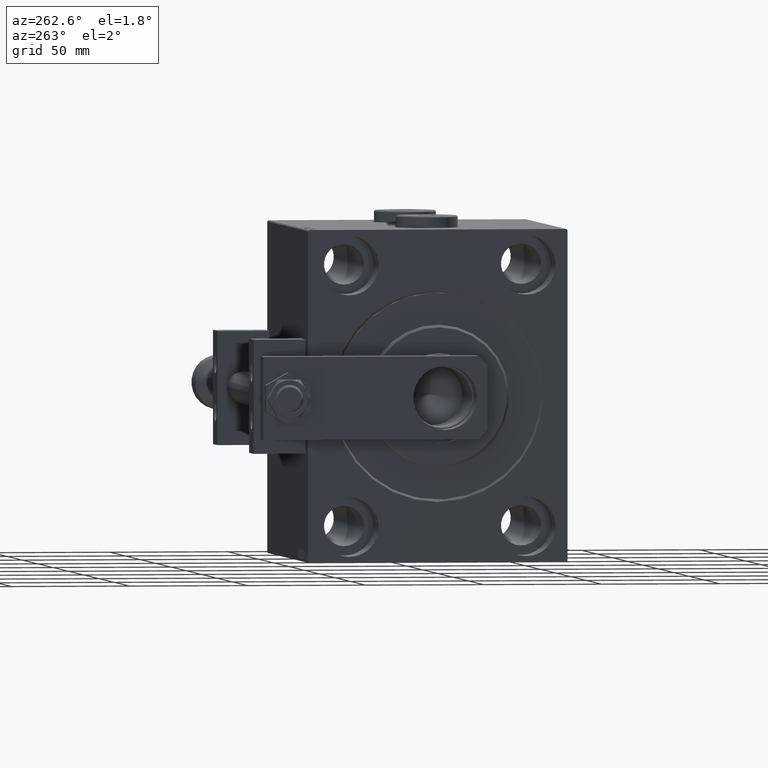
[diagram: clean part render]
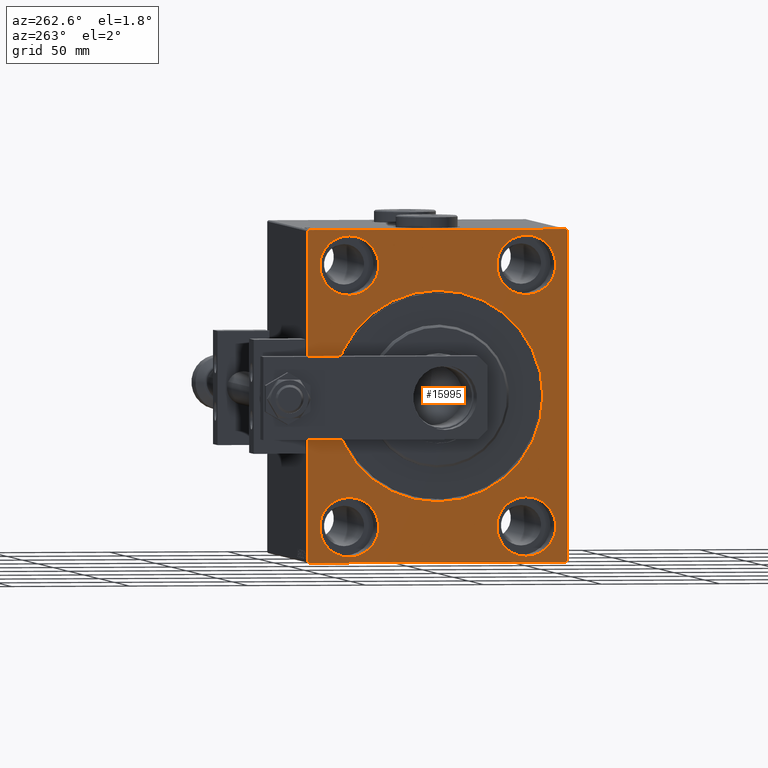
[diagram: same view with one face highlighted and labeled with its STEP entity id]
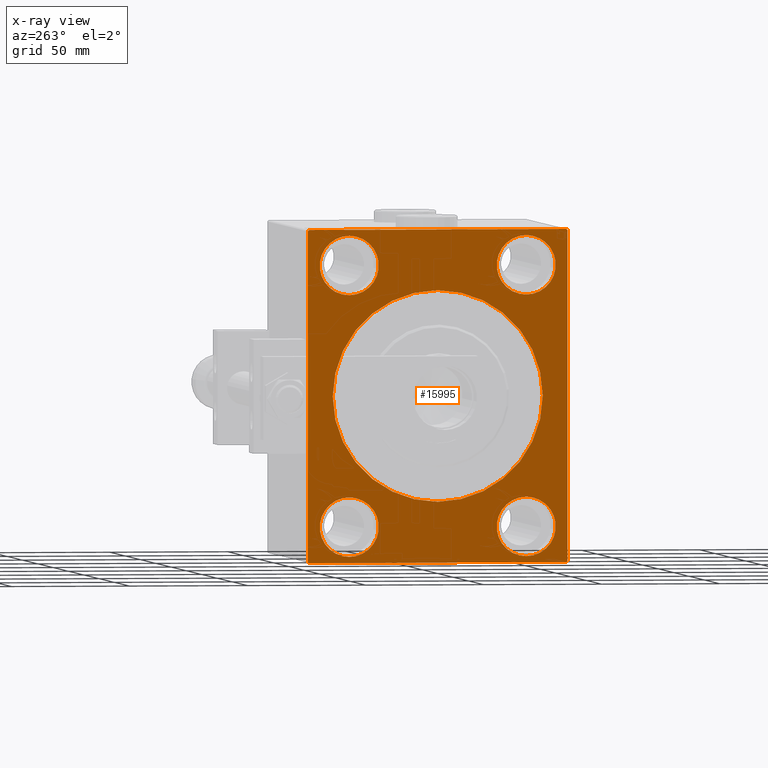
[diagram: x-ray of the same camera — body ghosted, the highlighted face saturated]
A machine part, auxiliary view. The second image highlights one B-rep face of the part: STEP entity #15995.
The next image is the same camera in x-ray: the body ghosted, the highlighted face saturated — about 0% of this face is hidden behind the body in this view.
In plain terms, the highlighted planar face has unit normal (1, 0, 0).
Its self-contained STEP definition (entity closure, byte-faithful):
#74 = EDGE_CURVE ( 'NONE', #36173, #29805, #1402, .T. ) ;
#426 = CARTESIAN_POINT ( 'NONE',  ( 0.000000000000000000, -55.00000000000000711, 69.50000000000001421 ) ) ;
#545 = DIRECTION ( 'NONE',  ( -0.000000000000000000, -0.7071067811865376918, 0.7071067811865574537 ) ) ;
#595 = EDGE_CURVE ( 'NONE', #37389, #19885, #43211, .T. ) ;
#1158 = ORIENTED_EDGE ( 'NONE', *, *, #32121, .F. ) ;
#1198 = DIRECTION ( 'NONE',  ( 1.000000000000000000, 0.000000000000000000, 0.000000000000000000 ) ) ;
#1402 = LINE ( 'NONE', #46279, #33185 ) ;
#1465 = FACE_BOUND ( 'NONE', #27286, .T. ) ;
#1850 = EDGE_CURVE ( 'NONE', #20530, #26323, #8627, .T. ) ;
#2587 = CARTESIAN_POINT ( 'NONE',  ( 0.000000000000000000, -37.50000000000000711, 55.00000000000000711 ) ) ;
#3144 = CARTESIAN_POINT ( 'NONE',  ( 0.000000000000000000, -37.50000000000002132, -54.99999999999999289 ) ) ;
#4085 = CARTESIAN_POINT ( 'NONE',  ( 0.000000000000000000, 37.50000000000000711, 55.00000000000000711 ) ) ;
#5286 = CARTESIAN_POINT ( 'NONE',  ( 0.000000000000000000, -37.50000000000002132, -42.49999999999999289 ) ) ;
#5705 = CARTESIAN_POINT ( 'NONE',  ( 0.000000000000000000, 5.449678256205723559E-15, -44.50000000000001421 ) ) ;
#5708 = AXIS2_PLACEMENT_3D ( 'NONE', #7978, #48865, #52353 ) ;
#6379 = VERTEX_POINT ( 'NONE', #28883 ) ;
#7016 = VERTEX_POINT ( 'NONE', #5286 ) ;
#7434 = EDGE_LOOP ( 'NONE', ( #26172, #28370 ) ) ;
#7530 = CARTESIAN_POINT ( 'NONE',  ( 0.000000000000000000, 54.50000000000004974, -70.00000000000000000 ) ) ;
#7674 = DIRECTION ( 'NONE',  ( 0.000000000000000000, 0.000000000000000000, 1.000000000000000000 ) ) ;
#7978 = CARTESIAN_POINT ( 'NONE',  ( 0.000000000000000000, 0.000000000000000000, 0.000000000000000000 ) ) ;
#8627 = CIRCLE ( 'NONE', #28149, 12.49999999999999645 ) ;
#9104 = CIRCLE ( 'NONE', #14161, 44.50000000000001421 ) ;
#9113 = DIRECTION ( 'NONE',  ( -1.000000000000000000, 0.000000000000000000, 0.000000000000000000 ) ) ;
#9141 = VECTOR ( 'NONE', #22038, 1000.000000000000114 ) ;
#9527 = DIRECTION ( 'NONE',  ( 0.000000000000000000, -1.982541115402065110E-16, 1.000000000000000000 ) ) ;
#9542 = AXIS2_PLACEMENT_3D ( 'NONE', #40004, #23267, #47987 ) ;
#10019 = VERTEX_POINT ( 'NONE', #48135 ) ;
#10113 = DIRECTION ( 'NONE',  ( -1.000000000000000000, 0.000000000000000000, 0.000000000000000000 ) ) ;
#10801 = DIRECTION ( 'NONE',  ( 0.000000000000000000, 0.000000000000000000, 1.000000000000000000 ) ) ;
#11216 = EDGE_CURVE ( 'NONE', #6379, #10019, #32545, .T. ) ;
#11988 = ORIENTED_EDGE ( 'NONE', *, *, #35141, .F. ) ;
#13808 = EDGE_CURVE ( 'NONE', #7016, #14497, #25012, .T. ) ;
#14021 = CARTESIAN_POINT ( 'NONE',  ( 0.000000000000000000, 55.00000000000002132, -70.00000000000000000 ) ) ;
#14161 = AXIS2_PLACEMENT_3D ( 'NONE', #16786, #33013, #45230 ) ;
#14347 = DIRECTION ( 'NONE',  ( -1.000000000000000000, 0.000000000000000000, 0.000000000000000000 ) ) ;
#14497 = VERTEX_POINT ( 'NONE', #32425 ) ;
#14500 = EDGE_CURVE ( 'NONE', #15913, #17566, #36665, .T. ) ;
#14693 = LINE ( 'NONE', #18421, #52149 ) ;
#14924 = AXIS2_PLACEMENT_3D ( 'NONE', #45556, #1198, #18163 ) ;
#15110 = CARTESIAN_POINT ( 'NONE',  ( 0.000000000000000000, 54.49999999999996447, 70.00000000000000000 ) ) ;
#15711 = ORIENTED_EDGE ( 'NONE', *, *, #11216, .F. ) ;
#15913 = VERTEX_POINT ( 'NONE', #24048 ) ;
#15957 = VERTEX_POINT ( 'NONE', #5705 ) ;
#15995 = ADVANCED_FACE ( 'NONE', ( #1465, #37574, #21631, #29352, #30398, #49534 ), #34127, .F. ) ;
#16328 = CARTESIAN_POINT ( 'NONE',  ( 0.000000000000000000, 37.49999999999997868, -42.49999999999999289 ) ) ;
#16338 = AXIS2_PLACEMENT_3D ( 'NONE', #22230, #18248, #34471 ) ;
#16786 = CARTESIAN_POINT ( 'NONE',  ( 0.000000000000000000, 0.000000000000000000, 0.000000000000000000 ) ) ;
#16926 = EDGE_LOOP ( 'NONE', ( #51933, #11988 ) ) ;
#16962 = LINE ( 'NONE', #25736, #42388 ) ;
#17055 = ORIENTED_EDGE ( 'NONE', *, *, #22640, .T. ) ;
#17374 = DIRECTION ( 'NONE',  ( -1.000000000000000000, 0.000000000000000000, 0.000000000000000000 ) ) ;
#17389 = AXIS2_PLACEMENT_3D ( 'NONE', #25348, #17374, #7674 ) ;
#17566 = VERTEX_POINT ( 'NONE', #28391 ) ;
#18163 = DIRECTION ( 'NONE',  ( 0.000000000000000000, 0.000000000000000000, -1.000000000000000000 ) ) ;
#18248 = DIRECTION ( 'NONE',  ( -1.000000000000000000, 0.000000000000000000, 0.000000000000000000 ) ) ;
#18421 = CARTESIAN_POINT ( 'NONE',  ( 0.000000000000000000, -55.00000000000000711, 69.50000000000001421 ) ) ;
#18798 = EDGE_CURVE ( 'NONE', #10019, #6379, #42209, .T. ) ;
#18890 = ORIENTED_EDGE ( 'NONE', *, *, #18798, .F. ) ;
#19366 = CARTESIAN_POINT ( 'NONE',  ( 0.000000000000000000, -54.50000000000003553, 69.99999999999998579 ) ) ;
#19870 = EDGE_CURVE ( 'NONE', #37389, #48797, #51543, .T. ) ;
#19885 = VERTEX_POINT ( 'NONE', #19366 ) ;
#20530 = VERTEX_POINT ( 'NONE', #31938 ) ;
#21270 = ORIENTED_EDGE ( 'NONE', *, *, #43741, .T. ) ;
#21308 = DIRECTION ( 'NONE',  ( 0.000000000000000000, 0.000000000000000000, 1.000000000000000000 ) ) ;
#21546 = CARTESIAN_POINT ( 'NONE',  ( 0.000000000000000000, 37.49999999999997868, -67.49999999999998579 ) ) ;
#21631 = FACE_BOUND ( 'NONE', #31790, .T. ) ;
#21798 = CARTESIAN_POINT ( 'NONE',  ( 0.000000000000000000, 37.50000000000000711, 55.00000000000000711 ) ) ;
#22038 = DIRECTION ( 'NONE',  ( -0.000000000000000000, 0.7071067811865474617, -0.7071067811865474617 ) ) ;
#22230 = CARTESIAN_POINT ( 'NONE',  ( 0.000000000000000000, 37.49999999999997868, -54.99999999999999289 ) ) ;
#22598 = EDGE_CURVE ( 'NONE', #26323, #20530, #40489, .T. ) ;
#22611 = DIRECTION ( 'NONE',  ( 0.000000000000000000, 1.000000000000000000, 2.523234146875355012E-16 ) ) ;
#22640 = EDGE_CURVE ( 'NONE', #15957, #29711, #9104, .T. ) ;
#22997 = CARTESIAN_POINT ( 'NONE',  ( 0.000000000000000000, 54.99999999999999289, 70.00000000000000000 ) ) ;
#23267 = DIRECTION ( 'NONE',  ( -1.000000000000000000, 0.000000000000000000, 0.000000000000000000 ) ) ;
#23793 = EDGE_LOOP ( 'NONE', ( #34343, #21270, #40168, #43514, #27088, #42535, #1158, #43782 ) ) ;
#24048 = CARTESIAN_POINT ( 'NONE',  ( 0.000000000000000000, -54.50000000000000711, -70.00000000000002842 ) ) ;
#24681 = VECTOR ( 'NONE', #35238, 1000.000000000000000 ) ;
#24943 = DIRECTION ( 'NONE',  ( 0.000000000000000000, 0.000000000000000000, -1.000000000000000000 ) ) ;
#25012 = CIRCLE ( 'NONE', #17389, 12.49999999999999645 ) ;
#25348 = CARTESIAN_POINT ( 'NONE',  ( 0.000000000000000000, -37.50000000000002132, -54.99999999999999289 ) ) ;
#25523 = DIRECTION ( 'NONE',  ( 0.000000000000000000, 0.000000000000000000, 1.000000000000000000 ) ) ;
#25736 = CARTESIAN_POINT ( 'NONE',  ( 0.000000000000000000, -55.00000000000000711, 69.99999999999998579 ) ) ;
#25871 = VECTOR ( 'NONE', #9527, 1000.000000000000000 ) ;
#26172 = ORIENTED_EDGE ( 'NONE', *, *, #13808, .F. ) ;
#26323 = VERTEX_POINT ( 'NONE', #43759 ) ;
#26786 = ORIENTED_EDGE ( 'NONE', *, *, #22598, .F. ) ;
#27088 = ORIENTED_EDGE ( 'NONE', *, *, #45591, .F. ) ;
#27286 = EDGE_LOOP ( 'NONE', ( #27906, #17055 ) ) ;
#27297 = DIRECTION ( 'NONE',  ( 0.000000000000000000, 0.000000000000000000, 1.000000000000000000 ) ) ;
#27551 = AXIS2_PLACEMENT_3D ( 'NONE', #3144, #30763, #27297 ) ;
#27803 = DIRECTION ( 'NONE',  ( -1.000000000000000000, 0.000000000000000000, 0.000000000000000000 ) ) ;
#27906 = ORIENTED_EDGE ( 'NONE', *, *, #50540, .T. ) ;
#28149 = AXIS2_PLACEMENT_3D ( 'NONE', #21798, #10113, #25523 ) ;
#28370 = ORIENTED_EDGE ( 'NONE', *, *, #45624, .F. ) ;
#28391 = CARTESIAN_POINT ( 'NONE',  ( 0.000000000000000000, -55.00000000000000711, -69.50000000000001421 ) ) ;
#28883 = CARTESIAN_POINT ( 'NONE',  ( 0.000000000000000000, -37.50000000000000711, 67.50000000000000000 ) ) ;
#29131 = EDGE_CURVE ( 'NONE', #38135, #17566, #16962, .T. ) ;
#29352 = FACE_BOUND ( 'NONE', #47015, .T. ) ;
#29711 = VERTEX_POINT ( 'NONE', #34369 ) ;
#29726 = LINE ( 'NONE', #14021, #25871 ) ;
#29762 = VECTOR ( 'NONE', #22611, 1000.000000000000000 ) ;
#29805 = VERTEX_POINT ( 'NONE', #7530 ) ;
#30398 = FACE_BOUND ( 'NONE', #7434, .T. ) ;
#30763 = DIRECTION ( 'NONE',  ( -1.000000000000000000, 0.000000000000000000, 0.000000000000000000 ) ) ;
#31790 = EDGE_LOOP ( 'NONE', ( #15711, #18890 ) ) ;
#31938 = CARTESIAN_POINT ( 'NONE',  ( 0.000000000000000000, 37.50000000000000711, 42.50000000000000711 ) ) ;
#32121 = EDGE_CURVE ( 'NONE', #15913, #29805, #34071, .T. ) ;
#32425 = CARTESIAN_POINT ( 'NONE',  ( 0.000000000000000000, -37.50000000000002132, -67.49999999999998579 ) ) ;
#32545 = CIRCLE ( 'NONE', #39318, 12.49999999999999645 ) ;
#33013 = DIRECTION ( 'NONE',  ( 1.000000000000000000, 0.000000000000000000, 0.000000000000000000 ) ) ;
#33093 = CARTESIAN_POINT ( 'NONE',  ( 0.000000000000000000, 55.00000000000002132, -69.50000000000000000 ) ) ;
#33185 = VECTOR ( 'NONE', #33541, 1000.000000000000000 ) ;
#33541 = DIRECTION ( 'NONE',  ( 0.000000000000000000, -0.7071067811865279218, -0.7071067811865671127 ) ) ;
#33718 = AXIS2_PLACEMENT_3D ( 'NONE', #2587, #27803, #10801 ) ;
#34071 = LINE ( 'NONE', #34838, #29762 ) ;
#34127 = PLANE ( 'NONE',  #14924 ) ;
#34343 = ORIENTED_EDGE ( 'NONE', *, *, #29131, .F. ) ;
#34369 = CARTESIAN_POINT ( 'NONE',  ( 0.000000000000000000, 0.000000000000000000, 44.50000000000001421 ) ) ;
#34471 = DIRECTION ( 'NONE',  ( 0.000000000000000000, 0.000000000000000000, 1.000000000000000000 ) ) ;
#34838 = CARTESIAN_POINT ( 'NONE',  ( 0.000000000000000000, -55.00000000000000711, -70.00000000000002842 ) ) ;
#35141 = EDGE_CURVE ( 'NONE', #46488, #48763, #37522, .T. ) ;
#35238 = DIRECTION ( 'NONE',  ( 0.000000000000000000, -1.000000000000000000, -1.261617073437677999E-16 ) ) ;
#36113 = VECTOR ( 'NONE', #545, 999.9999999999998863 ) ;
#36173 = VERTEX_POINT ( 'NONE', #33093 ) ;
#36665 = LINE ( 'NONE', #48623, #36113 ) ;
#36798 = CARTESIAN_POINT ( 'NONE',  ( 0.000000000000000000, 54.99999999999999289, 69.49999999999997158 ) ) ;
#36895 = EDGE_CURVE ( 'NONE', #48763, #46488, #38386, .T. ) ;
#37072 = AXIS2_PLACEMENT_3D ( 'NONE', #4085, #9113, #21308 ) ;
#37389 = VERTEX_POINT ( 'NONE', #48693 ) ;
#37522 = CIRCLE ( 'NONE', #9542, 12.49999999999999645 ) ;
#37574 = FACE_BOUND ( 'NONE', #16926, .T. ) ;
#38135 = VERTEX_POINT ( 'NONE', #426 ) ;
#38386 = CIRCLE ( 'NONE', #16338, 12.49999999999999645 ) ;
#39318 = AXIS2_PLACEMENT_3D ( 'NONE', #45985, #14347, #43050 ) ;
#40004 = CARTESIAN_POINT ( 'NONE',  ( 0.000000000000000000, 37.49999999999997868, -54.99999999999999289 ) ) ;
#40168 = ORIENTED_EDGE ( 'NONE', *, *, #595, .F. ) ;
#40489 = CIRCLE ( 'NONE', #37072, 12.49999999999999645 ) ;
#42209 = CIRCLE ( 'NONE', #33718, 12.49999999999999645 ) ;
#42388 = VECTOR ( 'NONE', #24943, 1000.000000000000000 ) ;
#42535 = ORIENTED_EDGE ( 'NONE', *, *, #74, .T. ) ;
#42882 = DIRECTION ( 'NONE',  ( -0.000000000000000000, 0.7071067811865474617, 0.7071067811865474617 ) ) ;
#43050 = DIRECTION ( 'NONE',  ( 0.000000000000000000, 0.000000000000000000, 1.000000000000000000 ) ) ;
#43211 = LINE ( 'NONE', #22997, #24681 ) ;
#43514 = ORIENTED_EDGE ( 'NONE', *, *, #19870, .T. ) ;
#43679 = CIRCLE ( 'NONE', #27551, 12.49999999999999645 ) ;
#43741 = EDGE_CURVE ( 'NONE', #38135, #19885, #14693, .T. ) ;
#43759 = CARTESIAN_POINT ( 'NONE',  ( 0.000000000000000000, 37.50000000000000711, 67.50000000000000000 ) ) ;
#43782 = ORIENTED_EDGE ( 'NONE', *, *, #14500, .T. ) ;
#45230 = DIRECTION ( 'NONE',  ( 0.000000000000000000, 0.000000000000000000, -1.000000000000000000 ) ) ;
#45556 = CARTESIAN_POINT ( 'NONE',  ( 0.000000000000000000, 0.000000000000000000, 0.000000000000000000 ) ) ;
#45558 = CIRCLE ( 'NONE', #5708, 44.50000000000001421 ) ;
#45591 = EDGE_CURVE ( 'NONE', #36173, #48797, #29726, .T. ) ;
#45624 = EDGE_CURVE ( 'NONE', #14497, #7016, #43679, .T. ) ;
#45985 = CARTESIAN_POINT ( 'NONE',  ( 0.000000000000000000, -37.50000000000000711, 55.00000000000000711 ) ) ;
#46279 = CARTESIAN_POINT ( 'NONE',  ( 0.000000000000000000, 55.00000000000002132, -69.50000000000000000 ) ) ;
#46488 = VERTEX_POINT ( 'NONE', #21546 ) ;
#47015 = EDGE_LOOP ( 'NONE', ( #26786, #52225 ) ) ;
#47987 = DIRECTION ( 'NONE',  ( 0.000000000000000000, 0.000000000000000000, 1.000000000000000000 ) ) ;
#48135 = CARTESIAN_POINT ( 'NONE',  ( 0.000000000000000000, -37.50000000000000711, 42.50000000000000711 ) ) ;
#48623 = CARTESIAN_POINT ( 'NONE',  ( 0.000000000000000000, -54.50000000000000711, -70.00000000000002842 ) ) ;
#48693 = CARTESIAN_POINT ( 'NONE',  ( 0.000000000000000000, 54.49999999999996447, 70.00000000000000000 ) ) ;
#48763 = VERTEX_POINT ( 'NONE', #16328 ) ;
#48797 = VERTEX_POINT ( 'NONE', #36798 ) ;
#48865 = DIRECTION ( 'NONE',  ( 1.000000000000000000, 0.000000000000000000, 0.000000000000000000 ) ) ;
#49534 = FACE_OUTER_BOUND ( 'NONE', #23793, .T. ) ;
#50540 = EDGE_CURVE ( 'NONE', #29711, #15957, #45558, .T. ) ;
#51543 = LINE ( 'NONE', #15110, #9141 ) ;
#51933 = ORIENTED_EDGE ( 'NONE', *, *, #36895, .F. ) ;
#52149 = VECTOR ( 'NONE', #42882, 1000.000000000000114 ) ;
#52225 = ORIENTED_EDGE ( 'NONE', *, *, #1850, .F. ) ;
#52353 = DIRECTION ( 'NONE',  ( 0.000000000000000000, 0.000000000000000000, -1.000000000000000000 ) ) ;